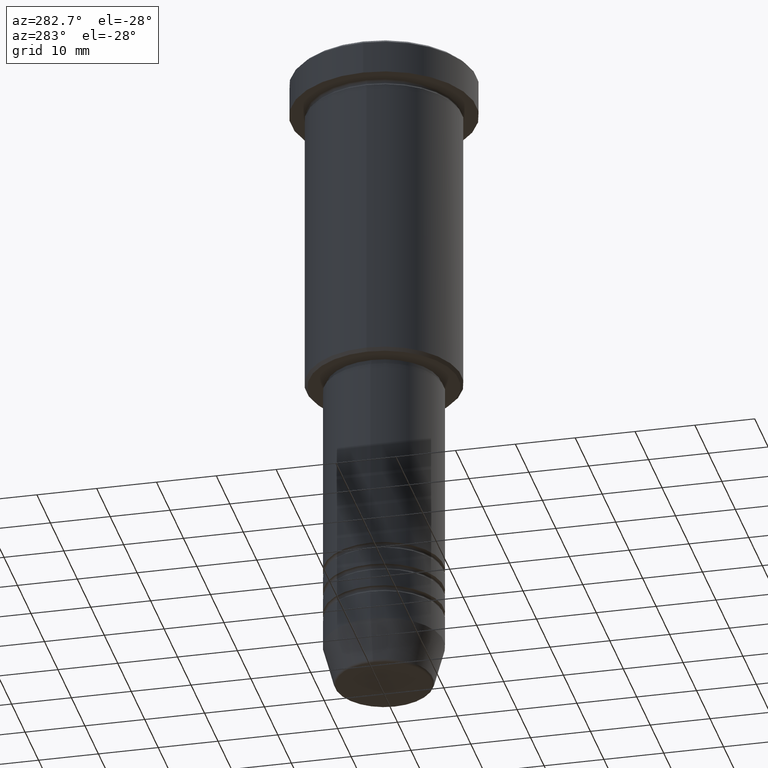
[diagram: clean part render]
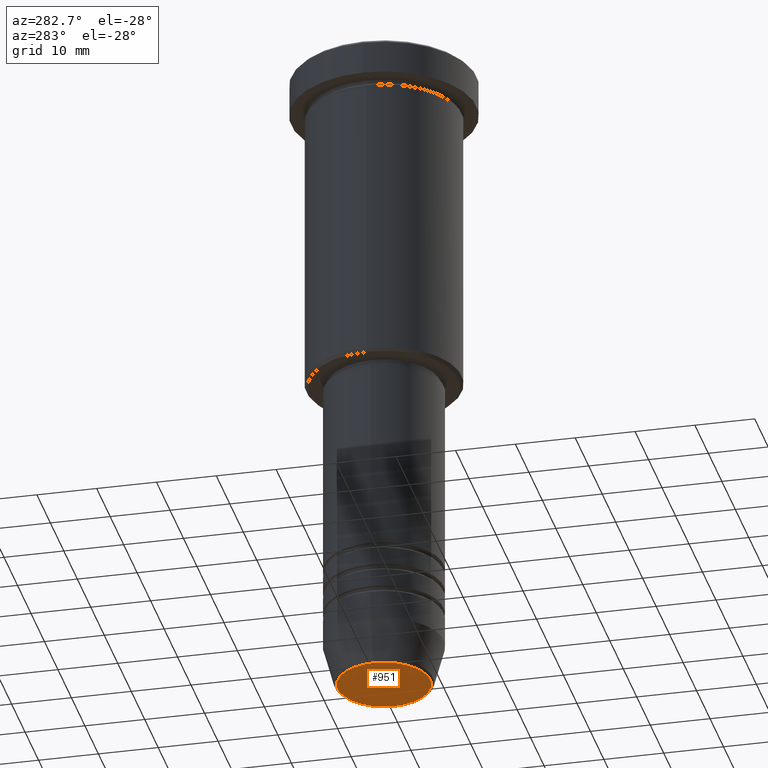
[diagram: same view with one face highlighted and labeled with its STEP entity id]
A machine part, auxiliary view. The second image highlights one B-rep face of the part: STEP entity #951.
In plain terms, the highlighted planar face has unit normal (0, -0, 1).
Its self-contained STEP definition (entity closure, byte-faithful):
#32 = ORIENTED_EDGE ( 'NONE', *, *, #796, .T. ) ;
#98 = DIRECTION ( 'NONE',  ( 0.000000000000000000, 0.000000000000000000, -1.000000000000000000 ) ) ;
#103 = AXIS2_PLACEMENT_3D ( 'NONE', #109, #98, #747 ) ;
#109 = CARTESIAN_POINT ( 'NONE',  ( 0.000000000000000000, 0.000000000000000000, -111.0000000000000142 ) ) ;
#119 = CIRCLE ( 'NONE', #835, 7.740692158992656502 ) ;
#123 = CIRCLE ( 'NONE', #103, 7.740692158992656502 ) ;
#131 = DIRECTION ( 'NONE',  ( 1.000000000000000000, 0.000000000000000000, 0.000000000000000000 ) ) ;
#231 = CARTESIAN_POINT ( 'NONE',  ( 0.000000000000000000, 0.000000000000000000, -111.0000000000000142 ) ) ;
#320 = AXIS2_PLACEMENT_3D ( 'NONE', #231, #516, #131 ) ;
#516 = DIRECTION ( 'NONE',  ( 0.000000000000000000, -0.000000000000000000, 1.000000000000000000 ) ) ;
#555 = EDGE_CURVE ( 'NONE', #611, #592, #119, .T. ) ;
#567 = CARTESIAN_POINT ( 'NONE',  ( 7.740692158992656502, 0.000000000000000000, -111.0000000000000142 ) ) ;
#572 = CARTESIAN_POINT ( 'NONE',  ( 0.000000000000000000, 0.000000000000000000, -111.0000000000000142 ) ) ;
#592 = VERTEX_POINT ( 'NONE', #567 ) ;
#611 = VERTEX_POINT ( 'NONE', #1036 ) ;
#747 = DIRECTION ( 'NONE',  ( 1.000000000000000000, 0.000000000000000000, 0.000000000000000000 ) ) ;
#796 = EDGE_CURVE ( 'NONE', #592, #611, #123, .T. ) ;
#830 = DIRECTION ( 'NONE',  ( 1.000000000000000000, 0.000000000000000000, 0.000000000000000000 ) ) ;
#835 = AXIS2_PLACEMENT_3D ( 'NONE', #572, #845, #830 ) ;
#843 = EDGE_LOOP ( 'NONE', ( #32, #1050 ) ) ;
#845 = DIRECTION ( 'NONE',  ( 0.000000000000000000, 0.000000000000000000, -1.000000000000000000 ) ) ;
#951 = ADVANCED_FACE ( 'NONE', ( #966 ), #1152, .F. ) ;
#966 = FACE_OUTER_BOUND ( 'NONE', #843, .T. ) ;
#1036 = CARTESIAN_POINT ( 'NONE',  ( -7.740692158992656502, 9.775343368540039135E-16, -111.0000000000000142 ) ) ;
#1050 = ORIENTED_EDGE ( 'NONE', *, *, #555, .T. ) ;
#1152 = PLANE ( 'NONE',  #320 ) ;